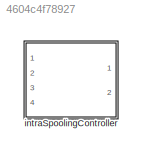
MODEL slx_4604c4f78927
KIND library
CONFIG AbsTol = auto
CONFIG EnableMultiTasking = off
CONFIG FixedStep = auto
CONFIG MaxStep = auto
CONFIG MinStep = auto
CONFIG RelTol = 1e-3
CONFIG SampleTimeConstraint = Unconstrained
CONFIG SolverName = VariableStepAuto
CONFIG StartTime = 0.0
CONFIG StopTime = 10.0
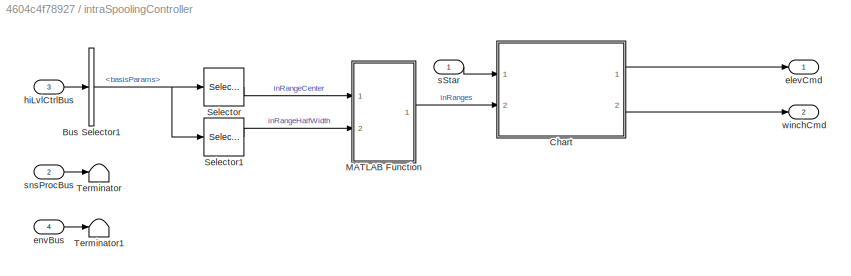
BLOCK [SubSystem] intraSpoolingController
  Ports = [4, 2]
  RequestExecContextInheritance = off
  VariantControl = strcmpi(SPOOLINGCONTROLLER,'intraSpoolingController')
BLOCK [BusSelector] intraSpoolingController/Bus Selector1
  OutputSignals = basisParams
  Ports = [1, 1]
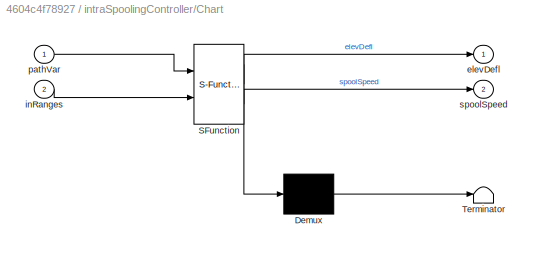
BLOCK [SubSystem] intraSpoolingController/Chart
  ErrorFcn = Stateflow.Translate.translate
  PermitHierarchicalResolution = ExplicitOnly
  Ports = [2, 2]
  RequestExecContextInheritance = off
  SFBlockType = Chart
  TreatAsAtomicUnit = on
BLOCK [Demux] intraSpoolingController/Chart/ Demux 
  Outputs = 1
  Ports = [1, 1]
BLOCK [S-Function] intraSpoolingController/Chart/ SFunction 
  EnableBusSupport = off
  FunctionName = sf_sfun
  Parameters = inElevDefl,inSpoolSpeed,outSpoolSpeed
  PortCounts = [2 3]
  Ports = [2, 3]
  SFcnIsStateOwnerBlock = off
  SFunctionDeploymentMode = off
  Tag = Stateflow S-Function 104
BLOCK [Terminator] intraSpoolingController/Chart/ Terminator 
BLOCK [Outport] intraSpoolingController/Chart/elevDefl
  VectorParamsAs1DForOutWhenUnconnected = off
BLOCK [Inport] intraSpoolingController/Chart/inRanges
  Port = 2
BLOCK [Inport] intraSpoolingController/Chart/pathVar
BLOCK [Outport] intraSpoolingController/Chart/spoolSpeed
  Port = 2
  VectorParamsAs1DForOutWhenUnconnected = off
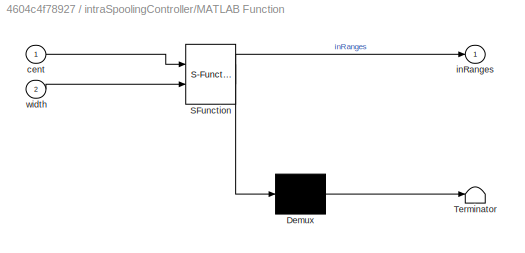
BLOCK [SubSystem] intraSpoolingController/MATLAB Function
  ErrorFcn = Stateflow.Translate.translate
  PermitHierarchicalResolution = ExplicitOnly
  Ports = [2, 1]
  RequestExecContextInheritance = off
  SFBlockType = MATLAB Function
  TreatAsAtomicUnit = on
BLOCK [Demux] intraSpoolingController/MATLAB Function/ Demux 
  Outputs = 1
  Ports = [1, 1]
BLOCK [S-Function] intraSpoolingController/MATLAB Function/ SFunction 
  EnableBusSupport = off
  FunctionName = sf_sfun
  PortCounts = [2 2]
  Ports = [2, 2]
  SFcnIsStateOwnerBlock = off
  SFunctionDeploymentMode = off
  Tag = Stateflow S-Function 105
BLOCK [Terminator] intraSpoolingController/MATLAB Function/ Terminator 
BLOCK [Inport] intraSpoolingController/MATLAB Function/cent
BLOCK [Outport] intraSpoolingController/MATLAB Function/inRanges
  VectorParamsAs1DForOutWhenUnconnected = off
BLOCK [Inport] intraSpoolingController/MATLAB Function/width
  Port = 2
BLOCK [Selector] intraSpoolingController/Selector
  IndexOptions = Index vector (dialog)
  Indices = 6
  InputPortWidth = 7
  OutputSizes = 1
  Ports = [1, 1]
BLOCK [Selector] intraSpoolingController/Selector1
  IndexOptions = Index vector (dialog)
  Indices = 7
  InputPortWidth = 7
  OutputSizes = 1
  Ports = [1, 1]
BLOCK [Terminator] intraSpoolingController/Terminator
BLOCK [Terminator] intraSpoolingController/Terminator1
BLOCK [Outport] intraSpoolingController/elevCmd
  VectorParamsAs1DForOutWhenUnconnected = off
BLOCK [Inport] intraSpoolingController/envBus
  OutDataTypeStr = Bus: envBus
  Port = 4
BLOCK [Inport] intraSpoolingController/hiLvlCtrlBus
  OutDataTypeStr = Bus: hiLvlCtrlBus
  Port = 3
BLOCK [Inport] intraSpoolingController/sStar 
BLOCK [Inport] intraSpoolingController/snsProcBus
  OutDataTypeStr = Bus: sensorsProcessingBus
  Port = 2
BLOCK [Outport] intraSpoolingController/winchCmd 
  Port = 2
  VectorParamsAs1DForOutWhenUnconnected = off
NET intraSpoolingController/Bus Selector1:1 -> intraSpoolingController/Selector1:1, intraSpoolingController/Selector:1
LINE intraSpoolingController/Chart:1 -> intraSpoolingController/elevCmd:1
LINE intraSpoolingController/Chart:2 -> intraSpoolingController/winchCmd :1
LINE intraSpoolingController/MATLAB Function:1 -> intraSpoolingController/Chart:2
LINE intraSpoolingController/Selector1:1 -> intraSpoolingController/MATLAB Function:2
LINE intraSpoolingController/Selector:1 -> intraSpoolingController/MATLAB Function:1
LINE intraSpoolingController/envBus:1 -> intraSpoolingController/Terminator1:1
LINE intraSpoolingController/hiLvlCtrlBus:1 -> intraSpoolingController/Bus Selector1:1
LINE intraSpoolingController/sStar :1 -> intraSpoolingController/Chart:1
LINE intraSpoolingController/snsProcBus:1 -> intraSpoolingController/Terminator:1
note: NET lines group one-source signal fan-out (src -> all destinations, sorted); 1:1 wires keep LINE
CHART intraSpoolingController/Chart states=2 transitions=3
  STATE_LABEL 'SPOOLOUT\nentry: spoolSpeed = outSpoolSpeed;\n elevDefl = 0;'
  STATE_LABEL 'SPOOLIN\nentry: spoolSpeed = inSpoolSpeed;\n elevDefl = inElevDefl;'
CHART intraSpoolingController/MATLAB Function states=1 transitions=1
  STATE_LABEL 'eML_blk_kernel()'
  STATE_LABEL 'SCRIPT:\nfunction inRanges = fcn(cent,width)\n\ninRanges = [...\n    cent-width cent+width;...\n    0.5+cent-width 0.5+cent+width];\n'
CHART  states=0 transitions=0
CHART  states=0 transitions=0
